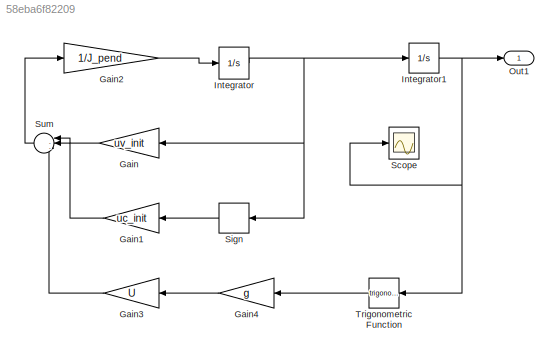
MODEL slx_58eba6f82209
KIND model
CONFIG AbsTol = auto
CONFIG EnableMultiTasking = off
CONFIG FixedStep = 0.01
CONFIG MaxStep = auto
CONFIG MinStep = auto
CONFIG RelTol = 1e-3
CONFIG SampleTimeConstraint = Unconstrained
CONFIG SolverName = FixedStepAuto
CONFIG StartTime = 0.0
CONFIG StopTime = T1(end)
BLOCK [Gain] Gain
  Gain = uv_init
  NameLocation = top
BLOCK [Gain] Gain1
  Gain = uc_init
  NameLocation = top
BLOCK [Gain] Gain2
  Gain = 1/J_pend
BLOCK [Gain] Gain3
  Gain = U
  NameLocation = top
BLOCK [Gain] Gain4
  Gain = g
  NameLocation = top
BLOCK [Integrator] Integrator
  InitialCondition = omega0
BLOCK [Integrator] Integrator1
  InitialCondition = fi0
BLOCK [Outport] Out1
  SignalName = phi_sim
  VectorParamsAs1DForOutWhenUnconnected = off
BLOCK [Scope] Scope
  Floating = off
  NumInputPorts = 1
  ScopeSpecificationString = Simulink.scopes.TimeScopeBlockCfg('CurrentConfiguration', extmgr.ConfigurationSet(extmgr.Configuration('Core','General UI',true),extmgr.Configuration('Core','Source UI',true),extmgr.Configuration('Sources','WiredSimulink',true),extmgr.Configuration('Visuals','Time Domain',true,'SerializedDisplays',{struct('MinYLimReal','-0.50891','MaxYLimReal','0.47531','YLabelReal','','MinYLimMag','0.00000','MaxY...<+1331ch>
BLOCK [Signum] Sign
  NameLocation = top
  ZeroCross = off
BLOCK [Sum] Sum
  Inputs = |---
  NameLocation = top
BLOCK [Trigonometry] Trigonometric Function
  NameLocation = top
LINE Gain1:1 -> Sum:2
LINE Gain2:1 -> Integrator:1
LINE Gain3:1 -> Sum:3
LINE Gain4:1 -> Gain3:1
LINE Gain:1 -> Sum:1
NET Integrator1:1 -> Out1:1, Scope:1, Trigonometric Function:1
NET Integrator:1 -> Gain:1, Integrator1:1, Sign:1
LINE Sign:1 -> Gain1:1
LINE Sum:1 -> Gain2:1
LINE Trigonometric Function:1 -> Gain4:1
note: NET lines group one-source signal fan-out (src -> all destinations, sorted); 1:1 wires keep LINE
